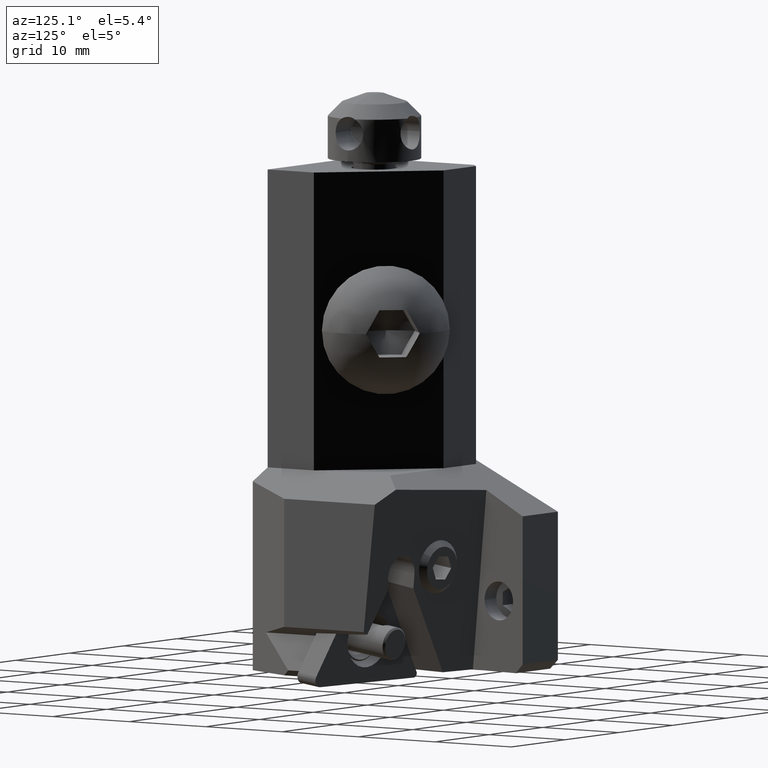
[diagram: clean part render]
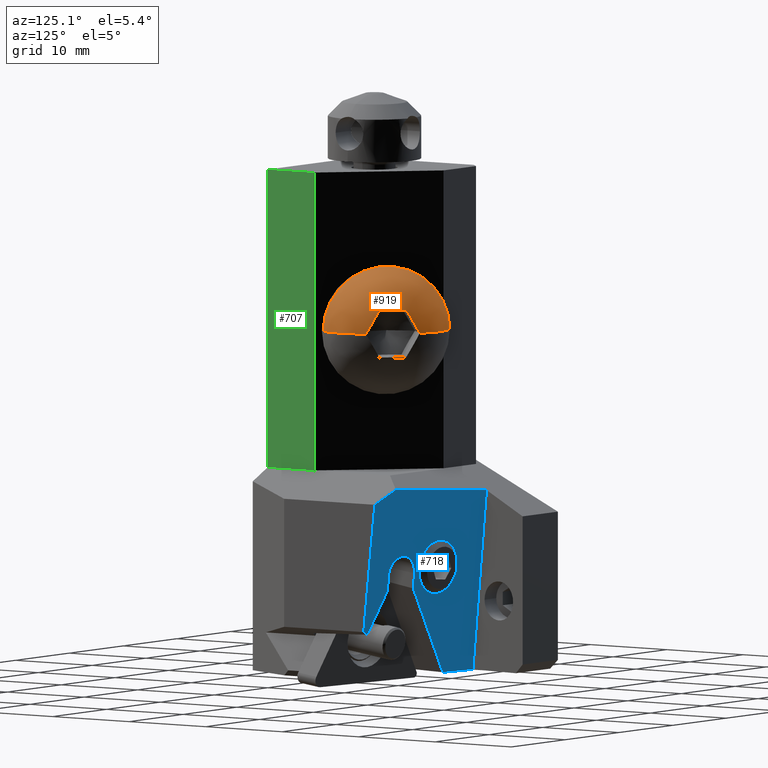
[diagram: same view with three faces highlighted in distinct colors, each labeled with its STEP entity id]
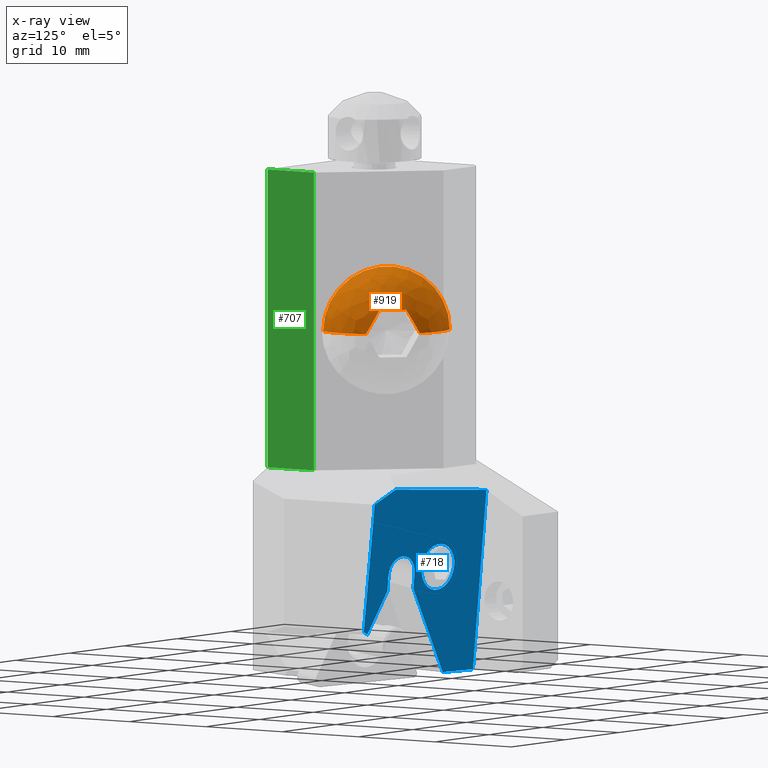
[diagram: x-ray of the same camera — body ghosted, the three highlighted faces saturated]
A machine part, auxiliary view with three faces highlighted in distinct colors.
The next image is the same camera in x-ray (body ghosted, the three faces saturated) — at least one of them is partly hidden behind the body in this view.
Their STEP definitions:

[orange] entity #919 — the highlighted face is a freeform B-spline surface patch.
#28=(
BOUNDED_SURFACE()
B_SPLINE_SURFACE(3,3,((#8554,#8555,#8556,#8557),(#8558,#8559,#8560,#8561),
(#8562,#8563,#8564,#8565),(#8566,#8567,#8568,#8569)),.UNSPECIFIED.,.F.,
 .F.,.F.)
B_SPLINE_SURFACE_WITH_KNOTS((4,4),(4,4),(0.,1.),(0.,1.),.UNSPECIFIED.)
GEOMETRIC_REPRESENTATION_ITEM()
RATIONAL_B_SPLINE_SURFACE(((1.,0.333333333332439,0.333333333332439,1.),
(0.90916697257495,0.30305565752417,0.30305565752417,0.90916697257495),(0.90916697257495,
0.30305565752417,0.30305565752417,0.90916697257495),(1.,0.333333333332439,
0.333333333332439,1.)))
REPRESENTATION_ITEM('')
SURFACE()
);
#220=B_SPLINE_CURVE_WITH_KNOTS('',3,(#8529,#8530,#8531,#8532),
 .UNSPECIFIED.,.F.,.F.,(4,4),(0.,1.),.UNSPECIFIED.);
#221=B_SPLINE_CURVE_WITH_KNOTS('',3,(#8534,#8535,#8536,#8537,#8538,#8539,
#8540,#8541,#8542,#8543,#8544,#8545,#8546,#8547,#8548),.UNSPECIFIED.,.F.,
 .F.,(4,1,1,1,1,1,1,1,1,1,1,1,4),(0.,0.08333333333333,0.1666666666667,0.25,
0.3333333333333,0.4166666666667,0.5,0.5833333333333,0.6666666666667,0.75,
0.8333333333333,0.9166666666667,1.),.UNSPECIFIED.);
#222=B_SPLINE_CURVE_WITH_KNOTS('',3,(#8550,#8551,#8552,#8553),
 .UNSPECIFIED.,.F.,.F.,(4,4),(0.,1.),.UNSPECIFIED.);
#497=FACE_OUTER_BOUND('',#1314,.T.);
#691=CIRCLE('',#4672,6.874999999998);
#693=CIRCLE('',#4676,6.);
#694=CIRCLE('',#4677,6.);
#919=ADVANCED_FACE('',(#497),#28,.T.);
#1314=EDGE_LOOP('',(#2474,#2475,#2476,#2477,#2478,#2479));
#2474=ORIENTED_EDGE('',*,*,#3471,.F.);
#2475=ORIENTED_EDGE('',*,*,#3472,.F.);
#2476=ORIENTED_EDGE('',*,*,#3473,.F.);
#2477=ORIENTED_EDGE('',*,*,#3466,.F.);
#2478=ORIENTED_EDGE('',*,*,#3462,.F.);
#2479=ORIENTED_EDGE('',*,*,#3470,.F.);
#2884=VERTEX_POINT('',#8477);
#2885=VERTEX_POINT('',#8478);
#2886=VERTEX_POINT('',#8485);
#2889=VERTEX_POINT('',#8511);
#2890=VERTEX_POINT('',#8533);
#2891=VERTEX_POINT('',#8549);
#3462=EDGE_CURVE('',#2884,#2885,#691,.T.);
#3466=EDGE_CURVE('',#2885,#2886,#693,.T.);
#3470=EDGE_CURVE('',#2889,#2884,#694,.T.);
#3471=EDGE_CURVE('',#2890,#2889,#220,.T.);
#3472=EDGE_CURVE('',#2891,#2890,#221,.T.);
#3473=EDGE_CURVE('',#2886,#2891,#222,.T.);
#4672=AXIS2_PLACEMENT_3D('',#8476,#5869,#5870);
#4676=AXIS2_PLACEMENT_3D('',#8484,#5879,#5880);
#4677=AXIS2_PLACEMENT_3D('',#8512,#5881,#5882);
#5869=DIRECTION('',(-0.707106781189548,-0.707106781183548,0.));
#5870=DIRECTION('',(0.707106781183548,-0.707106781189548,0.));
#5879=DIRECTION('',(0.,0.,-1.));
#5880=DIRECTION('',(-0.462404843803096,0.886668912518892,0.));
#5881=DIRECTION('',(0.,0.,-1.));
#5882=DIRECTION('',(0.884589876755201,0.466369756676201,0.));
#8476=CARTESIAN_POINT('',(-4.908474041703,12.09152595828,-17.));
#8477=CARTESIAN_POINT('',(-0.04711492105176,7.230166837634,-17.));
#8478=CARTESIAN_POINT('',(-9.769833162301,16.9528850789,-17.));
#8484=CARTESIAN_POINT('',(-6.995404099519,11.63287160385,-17.));
#8485=CARTESIAN_POINT('',(-4.19718555947097,16.9404108643821,-17.000000000001));
#8511=CARTESIAN_POINT('',(-0.0595891356271333,12.8028144405207,-17.0000000000003));
#8512=CARTESIAN_POINT('',(-5.367128396158,10.00459590047,-17.));
#8529=CARTESIAN_POINT('',(-1.09398824158518,13.8372135464842,-14.4662499999969));
#8530=CARTESIAN_POINT('',(-0.642447990730624,13.5991543933634,-15.3108333333306));
#8531=CARTESIAN_POINT('',(-0.297648288744411,13.2543546913769,-16.1554166666616));
#8532=CARTESIAN_POINT('',(-0.0595891356231159,12.8028144405233,-16.9999999999956));
#8533=CARTESIAN_POINT('',(-1.09398824158659,13.8372135464871,-14.4662499999984));
#8534=CARTESIAN_POINT('',(-3.162786453513,15.90601175841,-14.46625));
#8535=CARTESIAN_POINT('',(-3.096454481841,15.8574619187,-14.46625));
#8536=CARTESIAN_POINT('',(-2.965036851138,15.75819900455,-14.46625));
#8537=CARTESIAN_POINT('',(-2.770457329666,15.6022511972,-14.46625));
#8538=CARTESIAN_POINT('',(-2.581265676154,15.44194504389,-14.46625));
#8539=CARTESIAN_POINT('',(-2.400400730843,15.28078390678,-14.46625));
#8540=CARTESIAN_POINT('',(-2.220169912384,15.11231217318,-14.46625));
#8541=CARTESIAN_POINT('',(-2.047708647938,14.94343317933,-14.46625));
#8542=CARTESIAN_POINT('',(-1.879150026227,14.77089037439,-14.46625));
#8543=CARTESIAN_POINT('',(-1.711786601207,14.59143350347,-14.46625));
#8544=CARTESIAN_POINT('',(-1.551894867559,14.41161770251,-14.46625));
#8545=CARTESIAN_POINT('',(-1.393286322879,14.22408983004,-14.46625));
#8546=CARTESIAN_POINT('',(-1.239270088093,14.03165914741,-14.46625));
#8547=CARTESIAN_POINT('',(-1.141657822851,13.9023428514,-14.46625));
#8548=CARTESIAN_POINT('',(-1.093988241588,13.83721354649,-14.46625));
#8549=CARTESIAN_POINT('',(-3.16278645351169,15.9060117584119,-14.4662499999993));
#8550=CARTESIAN_POINT('',(-4.19718555947237,16.9404108643788,-17.0000000000017));
#8551=CARTESIAN_POINT('',(-3.74564530861691,16.7023517112584,-16.1554166666675));
#8552=CARTESIAN_POINT('',(-3.40084560662994,16.3575520092696,-15.3108333333329));
#8553=CARTESIAN_POINT('',(-3.16278645351038,15.9060117584138,-14.4662499999987));
#8554=CARTESIAN_POINT('',(-0.0471149210654739,7.23016683761226,-17.0000000000029));
#8555=CARTESIAN_POINT('',(-0.0471149210677233,7.23016683759856,-3.2499999999837));
#8556=CARTESIAN_POINT('',(-9.76983316236066,16.9528850789628,-3.24999999999405));
#8557=CARTESIAN_POINT('',(-9.76983316233233,16.9528850789504,-17.0000000000132));
#8558=CARTESIAN_POINT('',(0.978065070098481,9.19596637467833,-17.0000000000008));
#8559=CARTESIAN_POINT('',(0.978065070096449,9.19596637466596,-4.58023691884865));
#8560=CARTESIAN_POINT('',(-7.80403362528433,17.9780650701111,-4.580236918858));
#8561=CARTESIAN_POINT('',(-7.80403362525874,17.9780650701,-17.0000000000101));
#8562=CARTESIAN_POINT('',(0.872959487367998,11.4105351026005,-16.9999999999986));
#8563=CARTESIAN_POINT('',(0.8729594873665,11.4105351025914,-7.86075178927971));
#8564=CARTESIAN_POINT('',(-5.58946489735613,17.8729594873615,-7.86075178928658));
#8565=CARTESIAN_POINT('',(-5.5894648973373,17.8729594873532,-17.0000000000055));
#8566=CARTESIAN_POINT('',(-0.33379049442087,13.2704050753848,-16.9999999999969));
#8567=CARTESIAN_POINT('',(-0.333790494421659,13.2704050753801,-12.1976073196944));
#8568=CARTESIAN_POINT('',(-3.72959492457174,16.666209505555,-12.197607319698));
#8569=CARTESIAN_POINT('',(-3.72959492456185,16.6662095055507,-17.0000000000005));

[blue] entity #718 — the highlighted planar face has unit normal (0.1556, 0.9824, -0.1033).
#519=CIRCLE('',#4300,1.999999999983);
#520=CIRCLE('',#4301,1.999999999983);
#521=CIRCLE('',#4302,2.500000000002);
#522=CIRCLE('',#4303,2.500000000002);
#718=ADVANCED_FACE('',(#1050,#1051),#950,.T.);
#950=PLANE('',#4304);
#1050=FACE_BOUND('',#1101,.T.);
#1051=FACE_BOUND('',#1102,.T.);
#1101=EDGE_LOOP('',(#1488,#1489,#1490,#1491,#1492,#1493,#1494,#1495,#1496,
#1497,#1498,#1499));
#1102=EDGE_LOOP('',(#1500,#1501));
#1488=ORIENTED_EDGE('',*,*,#2987,.F.);
#1489=ORIENTED_EDGE('',*,*,#2988,.F.);
#1490=ORIENTED_EDGE('',*,*,#2989,.F.);
#1491=ORIENTED_EDGE('',*,*,#2990,.F.);
#1492=ORIENTED_EDGE('',*,*,#2991,.F.);
#1493=ORIENTED_EDGE('',*,*,#2946,.T.);
#1494=ORIENTED_EDGE('',*,*,#2983,.F.);
#1495=ORIENTED_EDGE('',*,*,#2976,.T.);
#1496=ORIENTED_EDGE('',*,*,#2959,.T.);
#1497=ORIENTED_EDGE('',*,*,#2992,.T.);
#1498=ORIENTED_EDGE('',*,*,#2993,.T.);
#1499=ORIENTED_EDGE('',*,*,#2994,.F.);
#1500=ORIENTED_EDGE('',*,*,#2995,.F.);
#1501=ORIENTED_EDGE('',*,*,#2996,.F.);
#2566=VERTEX_POINT('',#6102);
#2567=VERTEX_POINT('',#6104);
#2576=VERTEX_POINT('',#6128);
#2577=VERTEX_POINT('',#6130);
#2587=VERTEX_POINT('',#6163);
#2592=VERTEX_POINT('',#6185);
#2593=VERTEX_POINT('',#6186);
#2594=VERTEX_POINT('',#6188);
#2595=VERTEX_POINT('',#6190);
#2596=VERTEX_POINT('',#6192);
#2597=VERTEX_POINT('',#6195);
#2598=VERTEX_POINT('',#6197);
#2599=VERTEX_POINT('',#6200);
#2600=VERTEX_POINT('',#6201);
#2946=EDGE_CURVE('',#2567,#2566,#3518,.T.);
#2959=EDGE_CURVE('',#2577,#2576,#3530,.T.);
#2976=EDGE_CURVE('',#2587,#2577,#3545,.T.);
#2983=EDGE_CURVE('',#2587,#2566,#3552,.T.);
#2987=EDGE_CURVE('',#2592,#2593,#3554,.T.);
#2988=EDGE_CURVE('',#2594,#2592,#519,.T.);
#2989=EDGE_CURVE('',#2595,#2594,#520,.T.);
#2990=EDGE_CURVE('',#2596,#2595,#3555,.T.);
#2991=EDGE_CURVE('',#2567,#2596,#3556,.T.);
#2992=EDGE_CURVE('',#2576,#2597,#3557,.T.);
#2993=EDGE_CURVE('',#2597,#2598,#3558,.T.);
#2994=EDGE_CURVE('',#2593,#2598,#3559,.T.);
#2995=EDGE_CURVE('',#2599,#2600,#521,.T.);
#2996=EDGE_CURVE('',#2600,#2599,#522,.T.);
#3518=LINE('',#6103,#3820);
#3530=LINE('',#6129,#3832);
#3545=LINE('',#6162,#3847);
#3552=LINE('',#6176,#3854);
#3554=LINE('',#6184,#3856);
#3555=LINE('',#6191,#3857);
#3556=LINE('',#6193,#3858);
#3557=LINE('',#6194,#3859);
#3558=LINE('',#6196,#3860);
#3559=LINE('',#6198,#3861);
#3820=VECTOR('',#4819,1.);
#3832=VECTOR('',#4839,1.);
#3847=VECTOR('',#4870,1.);
#3854=VECTOR('',#4885,1.);
#3856=VECTOR('',#4895,1.);
#3857=VECTOR('',#4900,1.);
#3858=VECTOR('',#4901,1.);
#3859=VECTOR('',#4902,1.);
#3860=VECTOR('',#4903,1.);
#3861=VECTOR('',#4904,1.);
#4300=AXIS2_PLACEMENT_3D('',#6187,#4896,#4897);
#4301=AXIS2_PLACEMENT_3D('',#6189,#4898,#4899);
#4302=AXIS2_PLACEMENT_3D('',#6199,#4905,#4906);
#4303=AXIS2_PLACEMENT_3D('',#6202,#4907,#4908);
#4304=AXIS2_PLACEMENT_3D('',#6203,#4909,#4910);
#4819=DIRECTION('',(-0.987688340595064,0.156434465040694,7.53274263999073E-14));
#4839=DIRECTION('',(0.890709763885301,-0.184729063349,-0.4153447840934));
#4870=DIRECTION('',(0.986405701850482,-0.148932021163397,0.0694481420128888));
#4885=DIRECTION('',(-0.0161526953963204,-0.101984105024803,-0.994654881229527));
#4895=DIRECTION('',(-0.0204316465977597,-0.101305404594899,-0.994645546321486));
#4896=DIRECTION('',(0.155598304244396,0.982409029106772,-0.103255349719797));
#4897=DIRECTION('',(0.0204316466027719,0.101305404591876,0.994645546321691));
#4898=DIRECTION('',(0.155598304244396,0.982409029106772,-0.103255349719797));
#4899=DIRECTION('',(-0.987609090447206,0.156874837145737,0.00430928492227269));
#4900=DIRECTION('',(0.0204316466044797,0.101305404595499,0.994645546321287));
#4901=DIRECTION('',(0.511498870221606,0.0092956353456891,0.859233668407809));
#4902=DIRECTION('',(-6.08017709864281E-14,-0.104528463267697,-0.994521895368269));
#4903=DIRECTION('',(-0.872350362963039,0.0876151453706239,-0.480966142820821));
#4904=DIRECTION('',(0.476110220224779,-0.166170472493493,-0.863542953343261));
#4905=DIRECTION('',(0.155598304244293,0.982409029105759,-0.103255349729596));
#4906=DIRECTION('',(0.987688340595527,-0.156434465037776,2.01810790301076E-11));
#4907=DIRECTION('',(0.155598304244293,0.982409029105759,-0.103255349729596));
#4908=DIRECTION('',(-0.98768834059487,0.156434465041923,2.02643457569545E-11));
#4909=DIRECTION('',(0.155598304244706,0.982409029106439,-0.103255349722504));
#4910=DIRECTION('',(-5.28613611217033E-15,-0.104528463267829,-0.994521895368255));
#6102=CARTESIAN_POINT('',(-11.6,18.68497884528,-53.58234527097));
#6103=CARTESIAN_POINT('',(-7.034870717332,17.96193339883,-53.58234527097));
#6104=CARTESIAN_POINT('',(-7.034870717332,17.96193339883,-53.58234527097));
#6128=CARTESIAN_POINT('',(5.60809981443,17.95302140786,-34.61509989117));
#6129=CARTESIAN_POINT('',(2.580857406907,18.58085740691,-33.20347357345));
#6130=CARTESIAN_POINT('',(2.580857406907,18.58085740691,-33.20347357345));
#6162=CARTESIAN_POINT('',(-11.28491073455,20.67437417229,-34.17969647362));
#6163=CARTESIAN_POINT('',(-11.28491073455,20.67437417229,-34.17969647362));
#6176=CARTESIAN_POINT('',(-11.28491073455,20.67437417229,-34.17969647362));
#6184=CARTESIAN_POINT('',(2.567237957284,17.60258496543,-42.53163763752));
#6185=CARTESIAN_POINT('',(2.567237957271,17.60258496543,-42.53163763752));
#6186=CARTESIAN_POINT('',(2.533748412346,17.43653511313,-44.16196275898));
#6187=CARTESIAN_POINT('',(0.5920197763949,17.91633463973,-42.52301906763));
#6188=CARTESIAN_POINT('',(0.6328830696002,18.11894544891,-40.533727975));
#6189=CARTESIAN_POINT('',(0.5920197763951,17.91633463973,-42.52301906763));
#6190=CARTESIAN_POINT('',(-1.383198404491,18.23008431401,-42.51440049778));
#6191=CARTESIAN_POINT('',(-1.416687949441,18.06403446172,-44.14472561924));
#6192=CARTESIAN_POINT('',(-1.416687949441,18.06403446172,-44.14472561924));
#6193=CARTESIAN_POINT('',(-7.034870717332,17.96193339883,-53.58234527097));
#6194=CARTESIAN_POINT('',(5.60809981443,17.95302140786,-34.61509989117));
#6195=CARTESIAN_POINT('',(5.60809981443,16.50702061133,-48.37287847046));
#6196=CARTESIAN_POINT('',(5.60809981443,16.50702061133,-48.37287847046));
#6197=CARTESIAN_POINT('',(5.030880385946,16.5649940659,-48.69112560357));
#6198=CARTESIAN_POINT('',(2.533748412346,17.43653511313,-44.16196275898));
#6199=CARTESIAN_POINT('',(-4.893624545104,18.83429722663,-42.0556555871));
#6200=CARTESIAN_POINT('',(-2.424403693614,18.44321106402,-42.05565558705));
#6201=CARTESIAN_POINT('',(-7.362845396594,19.22538338922,-42.05565558706));
#6202=CARTESIAN_POINT('',(-4.893624545108,18.8342972266,-42.0556555871));
#6203=CARTESIAN_POINT('',(-2.995950092785,18.39185339148,-43.40557006699));

[green] entity #707 — the highlighted planar face has unit normal (1, 0, 0).
#300=FACE_OUTER_BOUND('',#1087,.T.);
#707=ADVANCED_FACE('',(#300),#939,.T.);
#939=PLANE('',#4285);
#1087=EDGE_LOOP('',(#1427,#1428,#1429,#1430));
#1427=ORIENTED_EDGE('',*,*,#2963,.T.);
#1428=ORIENTED_EDGE('',*,*,#2903,.F.);
#1429=ORIENTED_EDGE('',*,*,#2962,.F.);
#1430=ORIENTED_EDGE('',*,*,#2964,.T.);
#2530=VERTEX_POINT('',#5954);
#2531=VERTEX_POINT('',#5956);
#2579=VERTEX_POINT('',#6134);
#2580=VERTEX_POINT('',#6138);
#2903=EDGE_CURVE('',#2530,#2531,#3494,.T.);
#2962=EDGE_CURVE('',#2579,#2530,#3533,.T.);
#2963=EDGE_CURVE('',#2580,#2531,#3534,.T.);
#2964=EDGE_CURVE('',#2579,#2580,#3535,.T.);
#3494=LINE('',#5955,#3796);
#3533=LINE('',#6135,#3835);
#3534=LINE('',#6137,#3836);
#3535=LINE('',#6139,#3837);
#3796=VECTOR('',#4753,1.);
#3835=VECTOR('',#4842,1.);
#3836=VECTOR('',#4845,1.);
#3837=VECTOR('',#4846,1.);
#4285=AXIS2_PLACEMENT_3D('',#6140,#4847,#4848);
#4753=DIRECTION('',(1.307750204423E-14,0.,1.));
#4842=DIRECTION('',(-2.894339340123E-14,-1.,-3.639786129814E-14));
#4845=DIRECTION('',(-1.541038482381E-14,-1.,0.));
#4846=DIRECTION('',(1.051820667601E-14,0.,1.));
#4847=DIRECTION('',(1.,0.,0.));
#4848=DIRECTION('',(0.,0.,-1.));
#5954=CARTESIAN_POINT('',(-4.181840059421E-13,0.,-32.));
#5955=CARTESIAN_POINT('',(-4.181840059421E-13,0.,-32.));
#5956=CARTESIAN_POINT('',(0.,0.,0.));
#6134=CARTESIAN_POINT('',(-2.430278200904E-13,6.051681066681,-32.));
#6135=CARTESIAN_POINT('',(-2.430278200904E-13,6.051681066681,-32.));
#6137=CARTESIAN_POINT('',(9.355479354175E-14,6.051681066681,0.));
#6138=CARTESIAN_POINT('',(9.355479354175E-14,6.051681066681,0.));
#6139=CARTESIAN_POINT('',(-2.430278200904E-13,6.051681066681,-32.));
#6140=CARTESIAN_POINT('',(0.,3.02584053334,-16.));